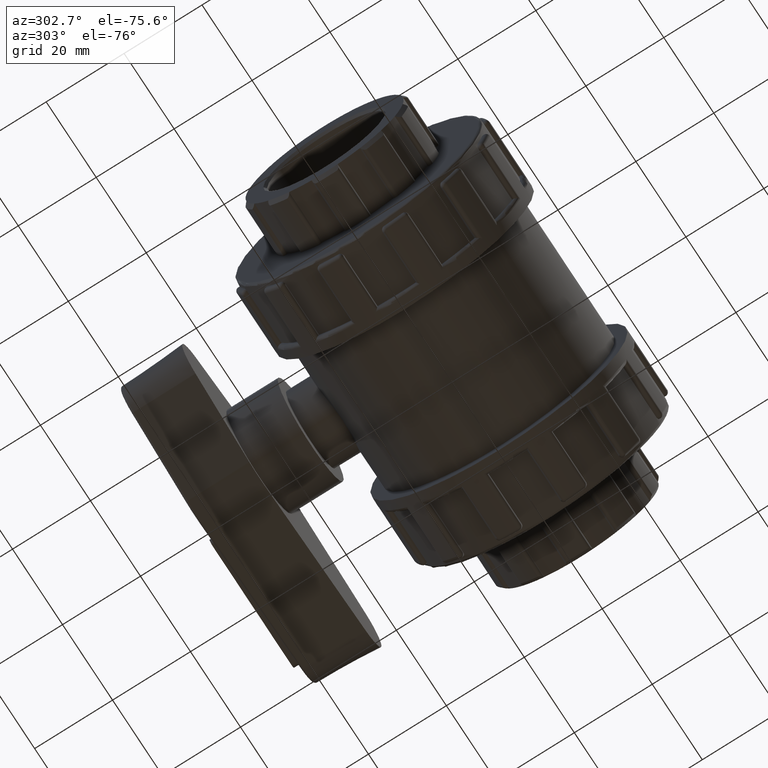
[diagram: clean part render]
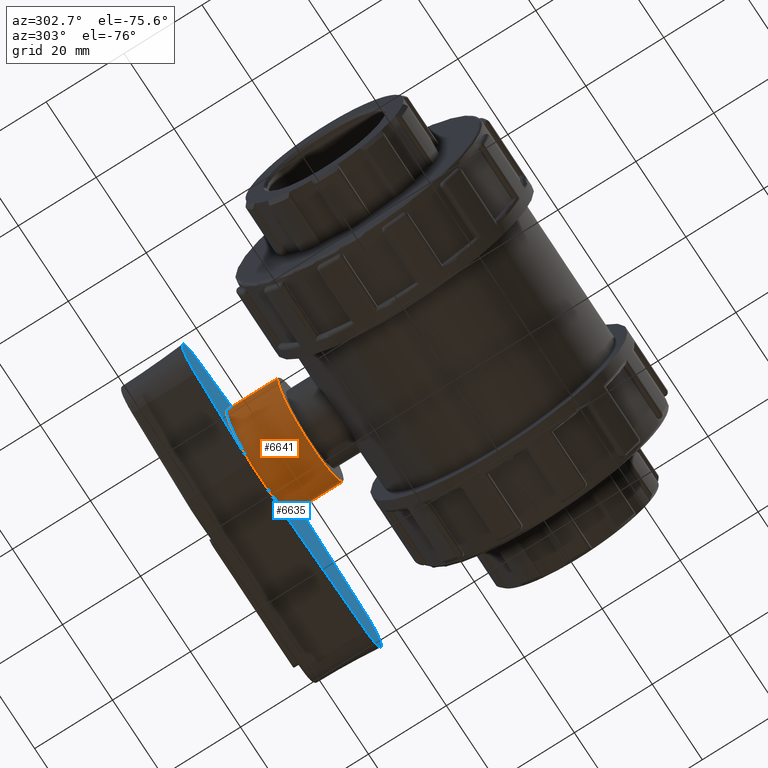
[diagram: same view with the hole feature highlighted: cylindrical wall and planar end face, labeled with their STEP entity ids]
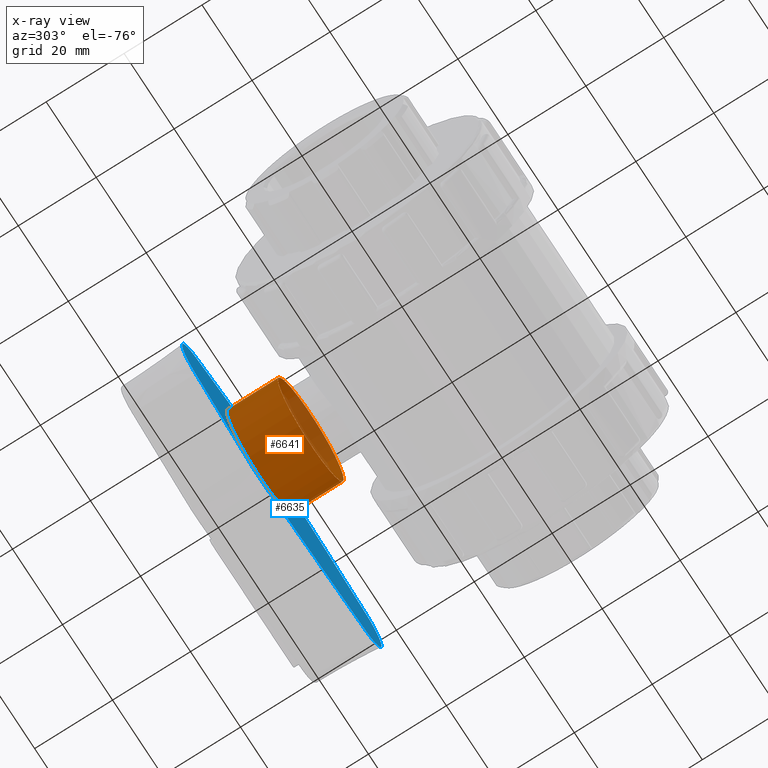
[diagram: x-ray of the same camera — body ghosted, the hole faces saturated]
A machine part, auxiliary view. The highlighted faces form one hole feature of diameter 26.4 mm: the cylindrical wall (entity #6641, orange) and its adjacent planar end face (entity #6635, blue) — they share a circular edge in the B-rep.
The next image is the same camera in x-ray (body ghosted, the hole faces saturated) — the bore reads through the body.
Wall:
#203=FACE_BOUND('',#882,.T.);
#444=FACE_OUTER_BOUND('',#881,.T.);
#881=EDGE_LOOP('',(#4428));
#882=EDGE_LOOP('',(#4429));
#2130=CIRCLE('',#7096,13.2);
#2131=CIRCLE('',#7102,13.2);
#2657=VERTEX_POINT('',#10411);
#2658=VERTEX_POINT('',#10421);
#3318=EDGE_CURVE('',#2657,#2657,#2130,.T.);
#3322=EDGE_CURVE('',#2658,#2658,#2131,.T.);
#4428=ORIENTED_EDGE('',*,*,#3318,.T.);
#4429=ORIENTED_EDGE('',*,*,#3322,.T.);
#6431=CYLINDRICAL_SURFACE('',#7104,13.2);
#6641=ADVANCED_FACE('',(#444,#203),#6431,.T.);
#7096=AXIS2_PLACEMENT_3D('',#10412,#8119,#8120);
#7102=AXIS2_PLACEMENT_3D('',#10422,#8134,#8135);
#7104=AXIS2_PLACEMENT_3D('',#10425,#8138,#8139);
#8119=DIRECTION('center_axis',(3.31909319677881E-16,-1.,1.59380779351777E-32));
#8120=DIRECTION('ref_axis',(-1.,0.,0.));
#8134=DIRECTION('center_axis',(-2.99049972963005E-16,1.,0.));
#8135=DIRECTION('ref_axis',(1.,2.99049972963005E-16,0.));
#8138=DIRECTION('center_axis',(-2.99049972963005E-16,1.,0.));
#8139=DIRECTION('ref_axis',(-1.,0.,0.));
#10411=CARTESIAN_POINT('',(13.2,49.5,1.61653377487451E-15));
#10412=CARTESIAN_POINT('Origin',(-3.94745964311167E-15,49.5,0.));
#10421=CARTESIAN_POINT('',(-13.2,36.3,0.));
#10422=CARTESIAN_POINT('Origin',(-1.1804876995451E-30,36.3,0.));
#10425=CARTESIAN_POINT('Origin',(-4.44089209850063E-15,51.15,0.));
End face:
#201=FACE_BOUND('',#874,.T.);
#232=PLANE('',#7093);
#438=FACE_OUTER_BOUND('',#873,.T.);
#873=EDGE_LOOP('',(#4401,#4402,#4403,#4404,#4405,#4406,#4407,#4408));
#874=EDGE_LOOP('',(#4409));
#1325=LINE('',#10368,#1721);
#1328=LINE('',#10376,#1724);
#1337=LINE('',#10407,#1733);
#1338=LINE('',#10410,#1734);
#1721=VECTOR('',#8073,40.8705272782234);
#1724=VECTOR('',#8082,40.8705272782234);
#1733=VECTOR('',#8115,22.4499443206437);
#1734=VECTOR('',#8118,22.4499443206437);
#2122=CIRCLE('',#7078,14.0647283581702);
#2123=CIRCLE('',#7081,7.46472835817019);
#2128=CIRCLE('',#7094,14.0647283581702);
#2129=CIRCLE('',#7095,7.46472835817019);
#2130=CIRCLE('',#7096,13.2);
#2641=VERTEX_POINT('',#10360);
#2642=VERTEX_POINT('',#10362);
#2643=VERTEX_POINT('',#10366);
#2644=VERTEX_POINT('',#10370);
#2645=VERTEX_POINT('',#10374);
#2654=VERTEX_POINT('',#10404);
#2655=VERTEX_POINT('',#10406);
#2656=VERTEX_POINT('',#10408);
#2657=VERTEX_POINT('',#10411);
#3294=EDGE_CURVE('',#2641,#2642,#2122,.T.);
#3297=EDGE_CURVE('',#2643,#2641,#1325,.T.);
#3299=EDGE_CURVE('',#2644,#2643,#2123,.T.);
#3301=EDGE_CURVE('',#2645,#2644,#1328,.T.);
#3314=EDGE_CURVE('',#2654,#2645,#2128,.T.);
#3315=EDGE_CURVE('',#2655,#2654,#1337,.T.);
#3316=EDGE_CURVE('',#2656,#2655,#2129,.T.);
#3317=EDGE_CURVE('',#2642,#2656,#1338,.T.);
#3318=EDGE_CURVE('',#2657,#2657,#2130,.T.);
#4401=ORIENTED_EDGE('',*,*,#3297,.F.);
#4402=ORIENTED_EDGE('',*,*,#3299,.F.);
#4403=ORIENTED_EDGE('',*,*,#3301,.F.);
#4404=ORIENTED_EDGE('',*,*,#3314,.F.);
#4405=ORIENTED_EDGE('',*,*,#3315,.F.);
#4406=ORIENTED_EDGE('',*,*,#3316,.F.);
#4407=ORIENTED_EDGE('',*,*,#3317,.F.);
#4408=ORIENTED_EDGE('',*,*,#3294,.F.);
#4409=ORIENTED_EDGE('',*,*,#3318,.F.);
#6635=ADVANCED_FACE('',(#438,#201),#232,.T.);
#7078=AXIS2_PLACEMENT_3D('',#10363,#8067,#8068);
#7081=AXIS2_PLACEMENT_3D('',#10372,#8077,#8078);
#7093=AXIS2_PLACEMENT_3D('',#10403,#8111,#8112);
#7094=AXIS2_PLACEMENT_3D('',#10405,#8113,#8114);
#7095=AXIS2_PLACEMENT_3D('',#10409,#8116,#8117);
#7096=AXIS2_PLACEMENT_3D('',#10412,#8119,#8120);
#8067=DIRECTION('center_axis',(-2.99049972963005E-16,1.,0.));
#8068=DIRECTION('ref_axis',(1.,2.99049972963005E-16,0.));
#8073=DIRECTION('',(-0.98721080382182,-2.95225364191702E-16,-0.159420289855073));
#8077=DIRECTION('center_axis',(-2.99049972963005E-16,1.,0.));
#8078=DIRECTION('ref_axis',(1.,2.99049972963005E-16,0.));
#8082=DIRECTION('',(0.98721080382182,2.95225364191702E-16,-0.159420289855073));
#8111=DIRECTION('center_axis',(3.31909319677881E-16,-1.,1.59380779351777E-32));
#8112=DIRECTION('ref_axis',(0.,0.,-1.));
#8113=DIRECTION('center_axis',(-2.99049972963005E-16,1.,0.));
#8114=DIRECTION('ref_axis',(1.,2.99049972963005E-16,0.));
#8115=DIRECTION('',(0.959399329942036,2.86908343679891E-16,0.282051282051282));
#8116=DIRECTION('center_axis',(-2.99049972963005E-16,1.,0.));
#8117=DIRECTION('ref_axis',(1.,2.99049972963005E-16,0.));
#8118=DIRECTION('',(-0.959399329942036,-2.86908343679891E-16,0.282051282051282));
#8119=DIRECTION('center_axis',(3.31909319677881E-16,-1.,1.59380779351777E-32));
#8120=DIRECTION('ref_axis',(-1.,0.,0.));
#10360=CARTESIAN_POINT('',(2.24220307159235,49.5,-13.8848517880048));
#10362=CARTESIAN_POINT('',(-3.96697466512494,49.5,-13.4936909626452));
#10363=CARTESIAN_POINT('Origin',(-3.88578058618805E-15,49.5,0.));
#10366=CARTESIAN_POINT('',(42.5900291585489,49.5,-7.36926048278073));
#10368=CARTESIAN_POINT('',(42.5900291585489,49.5,-7.36926048278073));
#10370=CARTESIAN_POINT('',(42.5900291585489,49.5,7.36926048278073));
#10372=CARTESIAN_POINT('Origin',(41.4,49.5,0.));
#10374=CARTESIAN_POINT('',(2.24220307159235,49.5,13.8848517880047));
#10376=CARTESIAN_POINT('',(2.24220307159235,49.5,13.8848517880047));
#10403=CARTESIAN_POINT('Origin',(41.3999991166027,49.5,-2.5144033655864E-15));
#10404=CARTESIAN_POINT('',(-3.96697466512493,49.5,13.4936909626452));
#10405=CARTESIAN_POINT('Origin',(-3.88578058618805E-15,49.5,0.));
#10406=CARTESIAN_POINT('',(-25.5054362035865,49.5,7.1616553850278));
#10407=CARTESIAN_POINT('',(-25.5054362035865,49.5,7.1616553850278));
#10408=CARTESIAN_POINT('',(-25.5054362035865,49.5,-7.16165538502779));
#10409=CARTESIAN_POINT('Origin',(-23.4,49.5,0.));
#10410=CARTESIAN_POINT('',(-3.96697466512494,49.5,-13.4936909626452));
#10411=CARTESIAN_POINT('',(13.2,49.5,1.61653377487451E-15));
#10412=CARTESIAN_POINT('Origin',(-3.94745964311167E-15,49.5,0.));